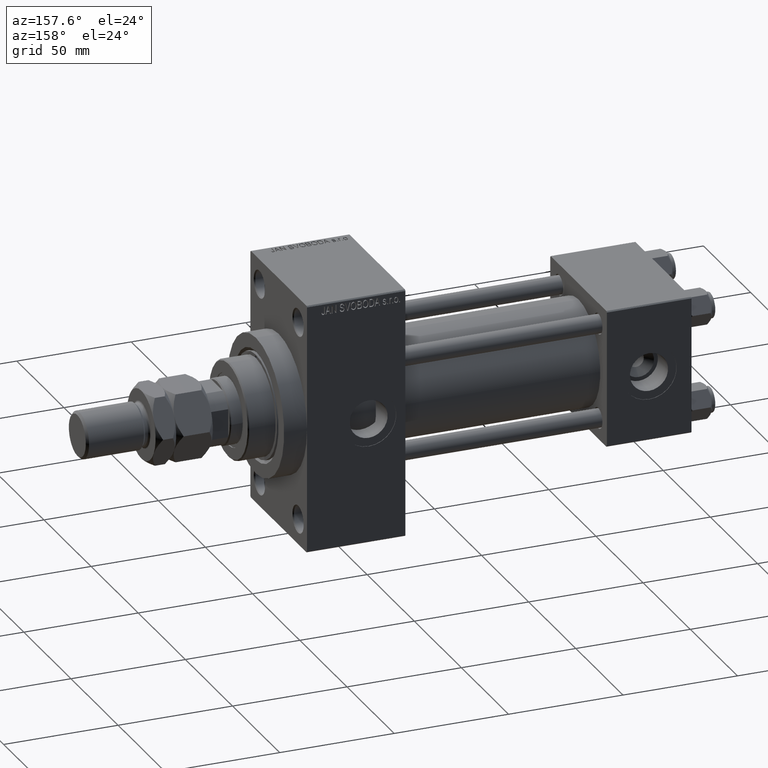
[diagram: clean part render]
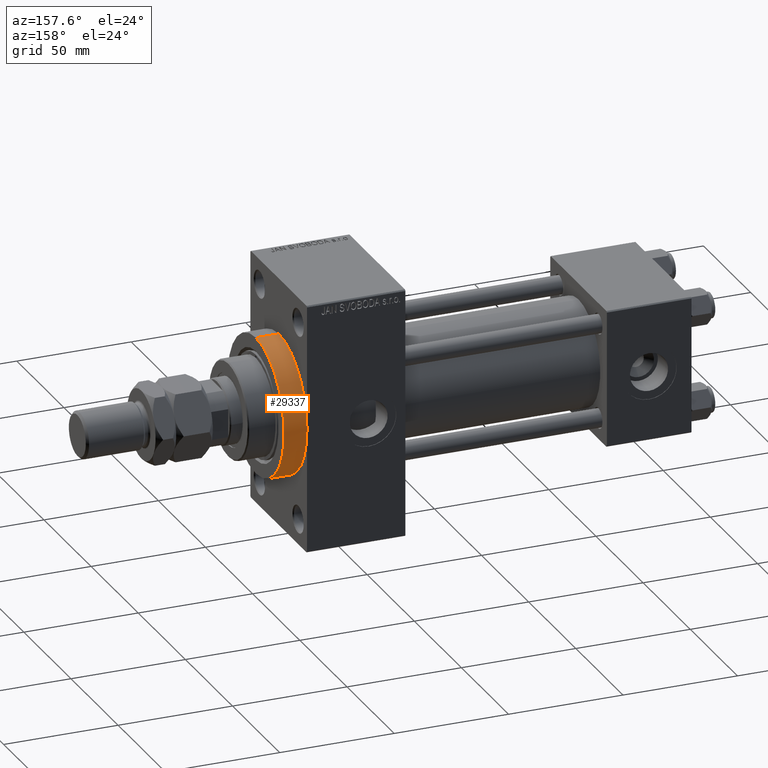
[diagram: same view with one face highlighted and labeled with its STEP entity id]
A machine part, auxiliary view. The second image highlights one B-rep face of the part: STEP entity #29337.
In plain terms, the highlighted cylindrical surface (partial cylindrical patch) has radius 30 mm, axis along (-1, -0, -0).
Its self-contained STEP definition (entity closure, byte-faithful):
#2905 = CIRCLE ( 'NONE', #39405, 30.00000000000000000 ) ;
#3063 = CARTESIAN_POINT ( 'NONE',  ( 167.9999999999999716, 30.00000000000000000, 0.000000000000000000 ) ) ;
#3939 = CARTESIAN_POINT ( 'NONE',  ( 178.0000000000000000, 0.000000000000000000, 30.00000000000000000 ) ) ;
#6377 = CARTESIAN_POINT ( 'NONE',  ( 178.0000000000000000, 3.673940397442059178E-15, -30.00000000000000000 ) ) ;
#6926 = ORIENTED_EDGE ( 'NONE', *, *, #39974, .T. ) ;
#7893 = DIRECTION ( 'NONE',  ( 1.000000000000000000, 0.000000000000000000, 0.000000000000000000 ) ) ;
#8060 = AXIS2_PLACEMENT_3D ( 'NONE', #27833, #35054, #39519 ) ;
#8922 = EDGE_CURVE ( 'NONE', #14575, #30635, #21880, .T. ) ;
#9426 = ORIENTED_EDGE ( 'NONE', *, *, #10084, .T. ) ;
#9528 = FACE_OUTER_BOUND ( 'NONE', #17252, .T. ) ;
#10084 = EDGE_CURVE ( 'NONE', #21640, #24772, #2905, .T. ) ;
#10747 = VECTOR ( 'NONE', #28248, 1000.000000000000000 ) ;
#11771 = ORIENTED_EDGE ( 'NONE', *, *, #8922, .F. ) ;
#13096 = LINE ( 'NONE', #6377, #10747 ) ;
#14575 = VERTEX_POINT ( 'NONE', #22741 ) ;
#14668 = ORIENTED_EDGE ( 'NONE', *, *, #24510, .T. ) ;
#16380 = CARTESIAN_POINT ( 'NONE',  ( 178.0000000000000000, 0.000000000000000000, 30.00000000000000000 ) ) ;
#16516 = VERTEX_POINT ( 'NONE', #17501 ) ;
#17252 = EDGE_LOOP ( 'NONE', ( #11771, #6926, #14668, #9426, #30837 ) ) ;
#17501 = CARTESIAN_POINT ( 'NONE',  ( 167.9999999999999716, 3.673940397442059178E-15, -30.00000000000000000 ) ) ;
#17714 = DIRECTION ( 'NONE',  ( 0.000000000000000000, 0.000000000000000000, 1.000000000000000000 ) ) ;
#18345 = CARTESIAN_POINT ( 'NONE',  ( 178.0000000000000000, 0.000000000000000000, 0.000000000000000000 ) ) ;
#20739 = CARTESIAN_POINT ( 'NONE',  ( 167.9999999999999716, 0.000000000000000000, 0.000000000000000000 ) ) ;
#21640 = VERTEX_POINT ( 'NONE', #3063 ) ;
#21880 = CIRCLE ( 'NONE', #44117, 30.00000000000000000 ) ;
#22741 = CARTESIAN_POINT ( 'NONE',  ( 178.0000000000000000, 3.673940397442059178E-15, -30.00000000000000000 ) ) ;
#23272 = CARTESIAN_POINT ( 'NONE',  ( 178.0000000000000000, 0.000000000000000000, 0.000000000000000000 ) ) ;
#24510 = EDGE_CURVE ( 'NONE', #16516, #21640, #38214, .T. ) ;
#24772 = VERTEX_POINT ( 'NONE', #28684 ) ;
#27012 = CYLINDRICAL_SURFACE ( 'NONE', #39875, 30.00000000000000000 ) ;
#27833 = CARTESIAN_POINT ( 'NONE',  ( 167.9999999999999716, 0.000000000000000000, 0.000000000000000000 ) ) ;
#28248 = DIRECTION ( 'NONE',  ( -1.000000000000000000, -0.000000000000000000, -0.000000000000000000 ) ) ;
#28257 = VECTOR ( 'NONE', #34248, 1000.000000000000000 ) ;
#28684 = CARTESIAN_POINT ( 'NONE',  ( 167.9999999999999716, 0.000000000000000000, 30.00000000000000000 ) ) ;
#29337 = ADVANCED_FACE ( 'NONE', ( #9528 ), #27012, .T. ) ;
#30635 = VERTEX_POINT ( 'NONE', #16380 ) ;
#30837 = ORIENTED_EDGE ( 'NONE', *, *, #41706, .F. ) ;
#32385 = DIRECTION ( 'NONE',  ( 0.000000000000000000, 0.000000000000000000, -1.000000000000000000 ) ) ;
#32632 = DIRECTION ( 'NONE',  ( 1.000000000000000000, 0.000000000000000000, 0.000000000000000000 ) ) ;
#34248 = DIRECTION ( 'NONE',  ( -1.000000000000000000, -0.000000000000000000, -0.000000000000000000 ) ) ;
#35054 = DIRECTION ( 'NONE',  ( 1.000000000000000000, 0.000000000000000000, 0.000000000000000000 ) ) ;
#38214 = CIRCLE ( 'NONE', #8060, 30.00000000000000000 ) ;
#38712 = LINE ( 'NONE', #3939, #28257 ) ;
#39405 = AXIS2_PLACEMENT_3D ( 'NONE', #20739, #32632, #32385 ) ;
#39519 = DIRECTION ( 'NONE',  ( 0.000000000000000000, 0.000000000000000000, -1.000000000000000000 ) ) ;
#39875 = AXIS2_PLACEMENT_3D ( 'NONE', #23272, #44549, #17714 ) ;
#39974 = EDGE_CURVE ( 'NONE', #14575, #16516, #13096, .T. ) ;
#41443 = DIRECTION ( 'NONE',  ( 0.000000000000000000, 0.000000000000000000, -1.000000000000000000 ) ) ;
#41706 = EDGE_CURVE ( 'NONE', #30635, #24772, #38712, .T. ) ;
#44117 = AXIS2_PLACEMENT_3D ( 'NONE', #18345, #7893, #41443 ) ;
#44549 = DIRECTION ( 'NONE',  ( -1.000000000000000000, -0.000000000000000000, -0.000000000000000000 ) ) ;